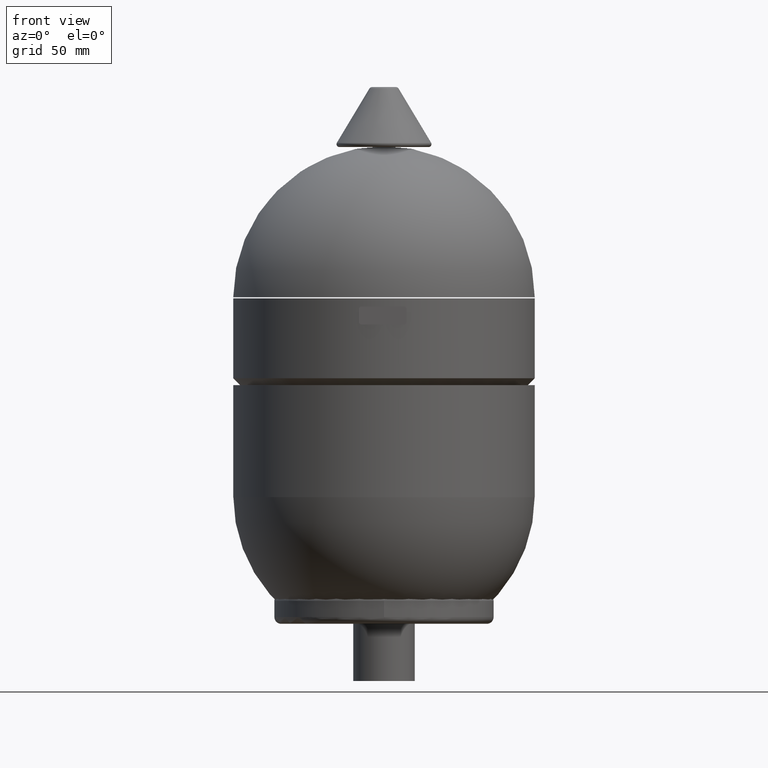
[diagram: clean part render]
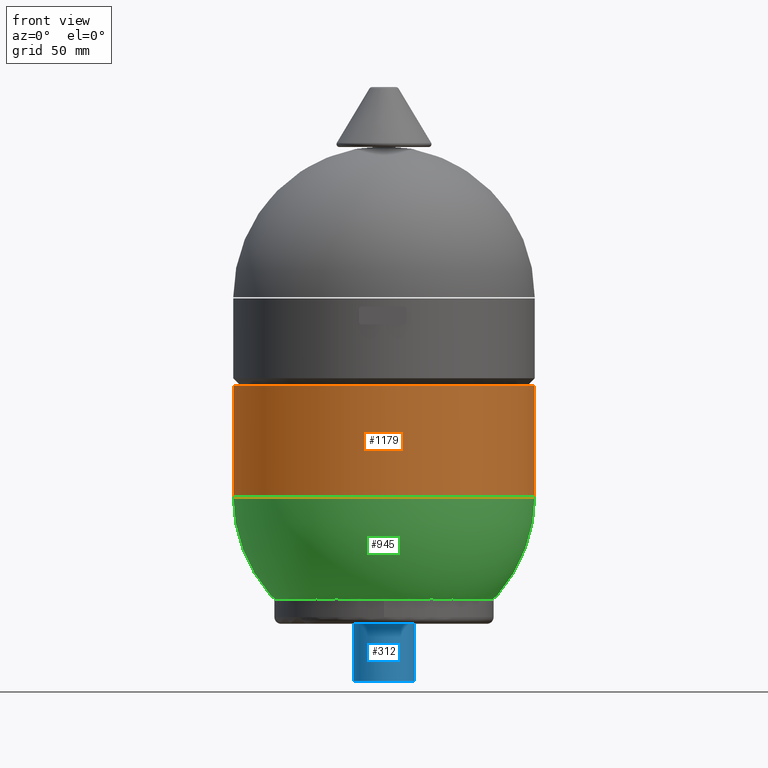
[diagram: same view with three faces highlighted in distinct colors, each labeled with its STEP entity id]
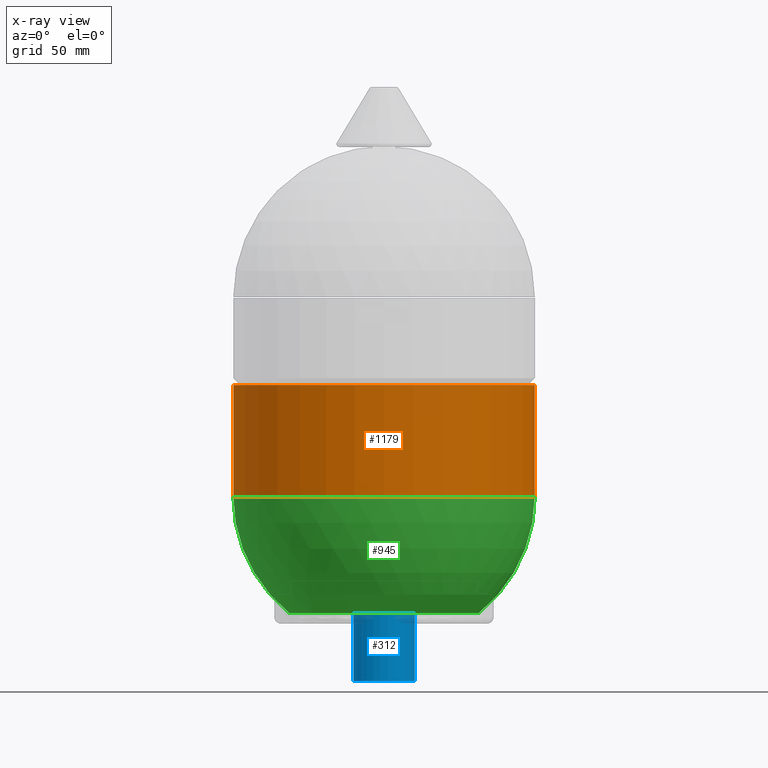
[diagram: x-ray of the same camera — body ghosted, the three highlighted faces saturated]
A machine part, front view with three faces highlighted in distinct colors.
The next image is the same camera in x-ray (body ghosted, the three faces saturated) — at least one of them is partly hidden behind the body in this view.
Their STEP definitions:

[orange] entity #1179 — the highlighted cylindrical surface (partial cylindrical patch) has radius 66 mm, axis along (0, 0, 1).
#1138=CARTESIAN_POINT('',(0.0,0.0,104.999999999999970));
#1139=DIRECTION('',(0.0,0.0,1.0));
#1140=DIRECTION('',(1.0,0.0,0.0));
#1141=AXIS2_PLACEMENT_3D('',#1138,#1139,#1140);
#1142=CYLINDRICAL_SURFACE('',#1141,65.999999999999972);
#1143=CARTESIAN_POINT('',(65.999999999999972,0.0,129.499999999999970));
#1144=VERTEX_POINT('',#1143);
#1145=CARTESIAN_POINT('',(65.999999999999957,0.0,80.499999999999957));
#1146=VERTEX_POINT('',#1145);
#1147=CARTESIAN_POINT('',(65.999999999999972,0.0,129.499999999999970));
#1148=DIRECTION('',(0.0,0.0,-1.0));
#1149=VECTOR('',#1148,49.000000000000014);
#1150=LINE('',#1147,#1149);
#1151=EDGE_CURVE('',#1144,#1146,#1150,.T.);
#1152=ORIENTED_EDGE('',*,*,#1151,.F.);
#1153=CARTESIAN_POINT('',(-65.999999999999972,-8.082402E-015,129.499999999999970));
#1154=VERTEX_POINT('',#1153);
#1155=CARTESIAN_POINT('',(0.0,0.0,129.499999999999970));
#1156=DIRECTION('',(0.0,0.0,1.0));
#1157=DIRECTION('',(1.0,0.0,0.0));
#1158=AXIS2_PLACEMENT_3D('',#1155,#1156,#1157);
#1159=CIRCLE('',#1158,65.999999999999972);
#1160=EDGE_CURVE('',#1154,#1144,#1159,.T.);
#1161=ORIENTED_EDGE('',*,*,#1160,.F.);
#1162=CARTESIAN_POINT('',(-65.999999999999972,-8.082402E-015,80.499999999999957));
#1163=VERTEX_POINT('',#1162);
#1164=CARTESIAN_POINT('',(-65.999999999999972,-8.082402E-015,129.499999999999970));
#1165=DIRECTION('',(0.0,0.0,-1.0));
#1166=VECTOR('',#1165,49.000000000000014);
#1167=LINE('',#1164,#1166);
#1168=EDGE_CURVE('',#1154,#1163,#1167,.T.);
#1169=ORIENTED_EDGE('',*,*,#1168,.T.);
#1170=CARTESIAN_POINT('',(0.0,0.0,80.499999999999957));
#1171=DIRECTION('',(0.0,0.0,1.0));
#1172=DIRECTION('',(1.0,0.0,0.0));
#1173=AXIS2_PLACEMENT_3D('',#1170,#1171,#1172);
#1174=CIRCLE('',#1173,65.999999999999957);
#1175=EDGE_CURVE('',#1163,#1146,#1174,.T.);
#1176=ORIENTED_EDGE('',*,*,#1175,.T.);
#1177=EDGE_LOOP('',(#1152,#1161,#1169,#1176));
#1178=FACE_OUTER_BOUND('',#1177,.T.);
#1179=ADVANCED_FACE('',(#1178),#1142,.T.);

[blue] entity #312 — the highlighted cylindrical surface (edge-blend (fillet) strip) has radius 13.45 mm, axis along (0, 0, 1).
#271=CARTESIAN_POINT('',(0.0,0.0,0.0));
#272=DIRECTION('',(0.0,0.0,1.0));
#273=DIRECTION('',(1.0,0.0,0.0));
#274=AXIS2_PLACEMENT_3D('',#271,#272,#273);
#275=CYLINDRICAL_SURFACE('',#274,13.449999999999999);
#276=CARTESIAN_POINT('',(13.449999999999999,0.0,30.999999999999989));
#277=VERTEX_POINT('',#276);
#278=CARTESIAN_POINT('',(13.449999999999999,0.0,0.0));
#279=VERTEX_POINT('',#278);
#280=CARTESIAN_POINT('',(13.449999999999999,0.0,30.999999999999989));
#281=DIRECTION('',(0.0,0.0,-1.0));
#282=VECTOR('',#281,30.999999999999989);
#283=LINE('',#280,#282);
#284=EDGE_CURVE('',#277,#279,#283,.T.);
#285=ORIENTED_EDGE('',*,*,#284,.F.);
#286=CARTESIAN_POINT('',(-13.449999999999999,1.647096E-015,30.999999999999993));
#287=VERTEX_POINT('',#286);
#288=CARTESIAN_POINT('',(0.0,0.0,30.999999999999993));
#289=DIRECTION('',(0.0,0.0,-1.0));
#290=DIRECTION('',(1.0,0.0,0.0));
#291=AXIS2_PLACEMENT_3D('',#288,#289,#290);
#292=CIRCLE('',#291,13.449999999999999);
#293=EDGE_CURVE('',#277,#287,#292,.T.);
#294=ORIENTED_EDGE('',*,*,#293,.T.);
#295=CARTESIAN_POINT('',(-13.449999999999999,-1.647096E-015,0.0));
#296=VERTEX_POINT('',#295);
#297=CARTESIAN_POINT('',(-13.449999999999999,1.647096E-015,30.999999999999993));
#298=DIRECTION('',(0.0,0.0,-1.0));
#299=VECTOR('',#298,30.999999999999993);
#300=LINE('',#297,#299);
#301=EDGE_CURVE('',#287,#296,#300,.T.);
#302=ORIENTED_EDGE('',*,*,#301,.T.);
#303=CARTESIAN_POINT('',(0.0,0.0,0.0));
#304=DIRECTION('',(0.0,0.0,1.0));
#305=DIRECTION('',(1.0,0.0,0.0));
#306=AXIS2_PLACEMENT_3D('',#303,#304,#305);
#307=CIRCLE('',#306,13.449999999999999);
#308=EDGE_CURVE('',#296,#279,#307,.T.);
#309=ORIENTED_EDGE('',*,*,#308,.T.);
#310=EDGE_LOOP('',(#285,#294,#302,#309));
#311=FACE_OUTER_BOUND('',#310,.T.);
#312=ADVANCED_FACE('',(#311),#275,.T.);

[green] entity #945 — the highlighted spherical surface has radius 66 mm.
#871=CARTESIAN_POINT('',(-41.373134328358177,0.0,29.577594806858457));
#872=VERTEX_POINT('',#871);
#880=CARTESIAN_POINT('',(41.373134328358177,0.0,29.577594806858446));
#881=VERTEX_POINT('',#880);
#906=CARTESIAN_POINT('',(1.010334E-014,0.0,81.0));
#907=DIRECTION('',(0.0,0.0,1.0));
#908=DIRECTION('',(1.0,0.0,0.0));
#909=AXIS2_PLACEMENT_3D('',#906,#907,#908);
#910=SPHERICAL_SURFACE('',#909,66.000000000000014);
#911=CARTESIAN_POINT('',(66.000000000000014,0.0,80.999999999999986));
#912=VERTEX_POINT('',#911);
#913=CARTESIAN_POINT('',(1.010334E-014,0.0,81.0));
#914=DIRECTION('',(0.0,1.0,0.0));
#915=DIRECTION('',(1.0,0.0,0.0));
#916=AXIS2_PLACEMENT_3D('',#913,#914,#915);
#917=CIRCLE('',#916,66.000000000000014);
#918=EDGE_CURVE('',#912,#881,#917,.T.);
#919=ORIENTED_EDGE('',*,*,#918,.F.);
#920=CARTESIAN_POINT('',(-66.0,0.0,81.0));
#921=VERTEX_POINT('',#920);
#922=CARTESIAN_POINT('',(1.010334E-014,0.0,81.0));
#923=DIRECTION('',(0.0,0.0,-1.0));
#924=DIRECTION('',(-1.0,0.0,0.0));
#925=AXIS2_PLACEMENT_3D('',#922,#923,#924);
#926=CIRCLE('',#925,66.0);
#927=EDGE_CURVE('',#912,#921,#926,.T.);
#928=ORIENTED_EDGE('',*,*,#927,.T.);
#929=CARTESIAN_POINT('',(1.010334E-014,0.0,81.0));
#930=DIRECTION('',(0.0,-1.0,0.0));
#931=DIRECTION('',(-1.0,0.0,0.0));
#932=AXIS2_PLACEMENT_3D('',#929,#930,#931);
#933=CIRCLE('',#932,66.000000000000014);
#934=EDGE_CURVE('',#921,#872,#933,.T.);
#935=ORIENTED_EDGE('',*,*,#934,.T.);
#936=CARTESIAN_POINT('',(6.571935E-016,0.0,29.577594806858450));
#937=DIRECTION('',(0.0,0.0,-1.0));
#938=DIRECTION('',(-1.0,0.0,0.0));
#939=AXIS2_PLACEMENT_3D('',#936,#937,#938);
#940=CIRCLE('',#939,41.373134328358177);
#941=EDGE_CURVE('',#881,#872,#940,.T.);
#942=ORIENTED_EDGE('',*,*,#941,.F.);
#943=EDGE_LOOP('',(#919,#928,#935,#942));
#944=FACE_OUTER_BOUND('',#943,.T.);
#945=ADVANCED_FACE('',(#944),#910,.T.);